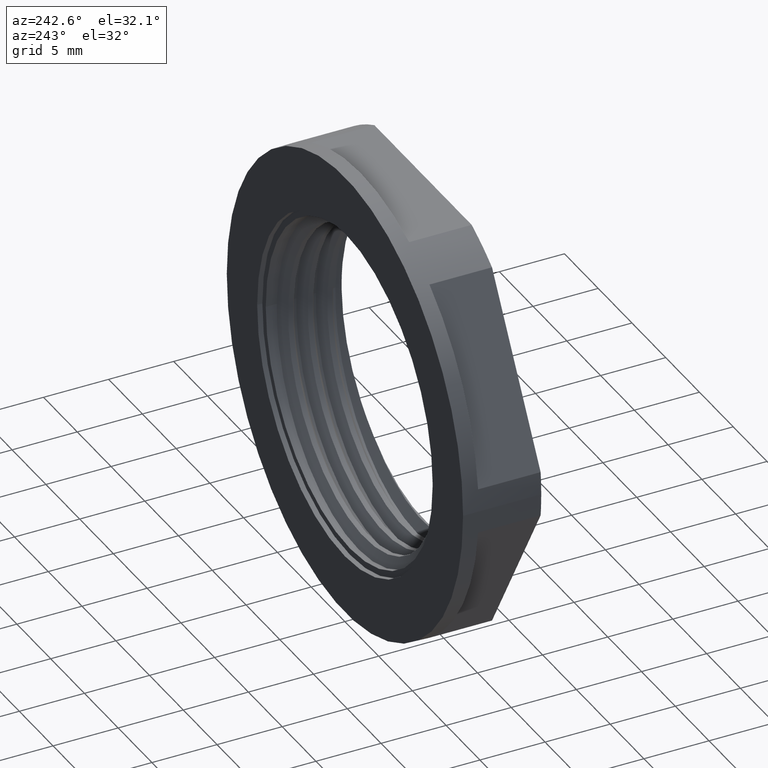
[diagram: clean part render]
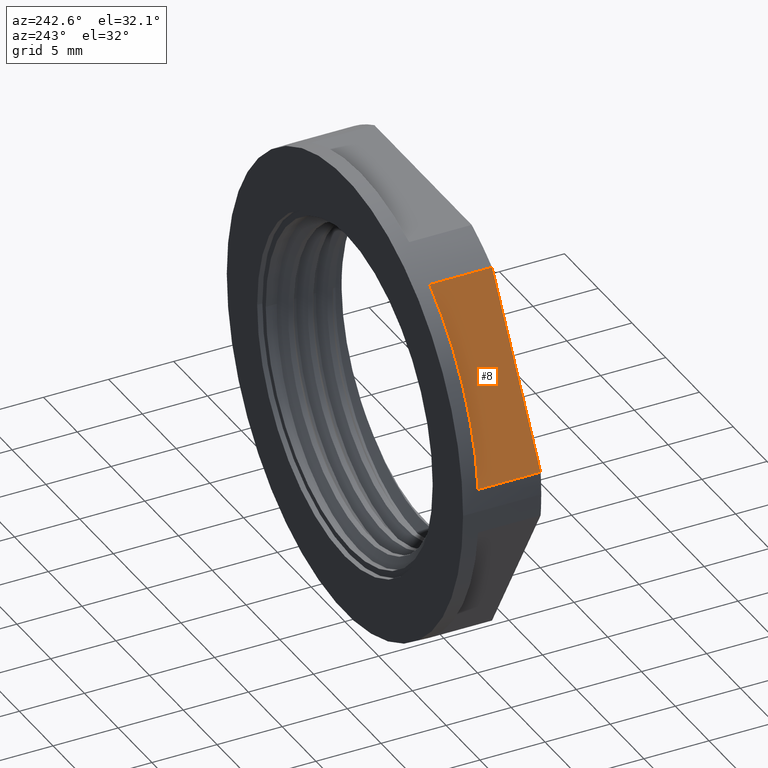
[diagram: same view with one face highlighted and labeled with its STEP entity id]
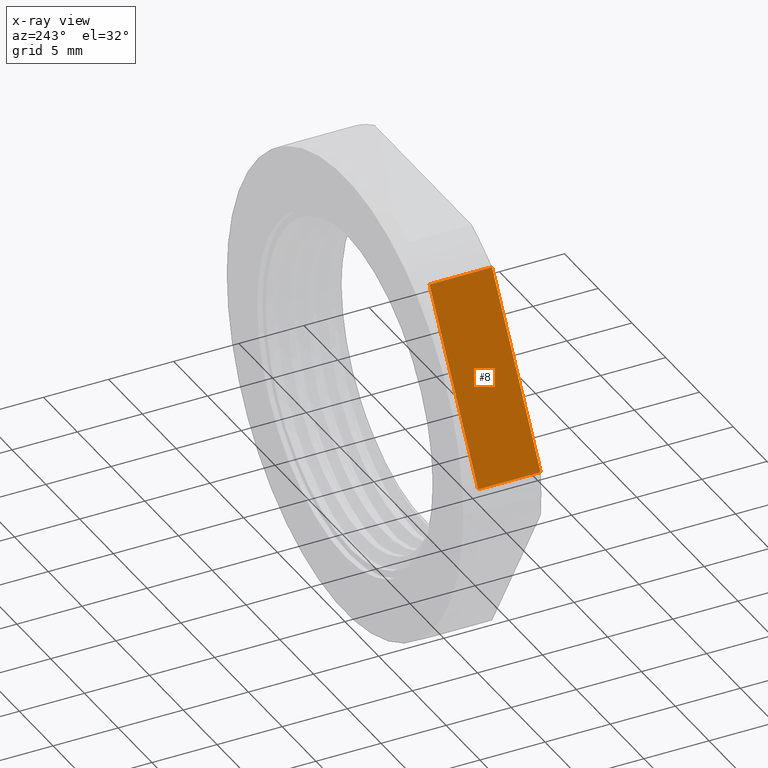
[diagram: x-ray of the same camera — body ghosted, the highlighted face saturated]
A machine part, auxiliary view. The second image highlights one B-rep face of the part: STEP entity #8.
The next image is the same camera in x-ray: the body ghosted, the highlighted face saturated — about 0% of this face is hidden behind the body in this view.
In plain terms, the highlighted planar face has unit normal (-0.866, -0, 0.5).
Its self-contained STEP definition (entity closure, byte-faithful):
#8 = ADVANCED_FACE ( 'NONE', ( #1227 ), #1244, .T. ) ;
#57 = EDGE_CURVE ( 'NONE', #1012, #1080, #828, .T. ) ;
#60 = EDGE_CURVE ( 'NONE', #1012, #1004, #847, .T. ) ;
#94 = EDGE_CURVE ( 'NONE', #1004, #1003, #200, .T. ) ;
#100 = EDGE_CURVE ( 'NONE', #1080, #1003, #278, .T. ) ;
#200 = LINE ( 'NONE', #207, #1806 ) ;
#207 = CARTESIAN_POINT ( 'NONE',  ( -17.41336559761014900, 36.15620339512025100, 1.739166054167250000 ) ) ;
#216 = DIRECTION ( 'NONE',  ( 1.224646799147352000E-016, -1.000000000000000000, 0.0000000000000000000 ) ) ;
#261 = DIRECTION ( 'NONE',  ( -0.4999999999999998900, -2.409163893373264600E-016, -0.8660254037844387100 ) ) ;
#262 = CARTESIAN_POINT ( 'NONE',  ( -10.21284478311344100, -16.00000000000000000, 14.21083394583276100 ) ) ;
#278 = LINE ( 'NONE', #262, #1782 ) ;
#465 = CARTESIAN_POINT ( 'NONE',  ( -17.41336559761014900, -16.00000000000000000, 1.739166054167250000 ) ) ;
#468 = CARTESIAN_POINT ( 'NONE',  ( -10.21284478311344100, -11.19999999999999900, 14.21083394583276100 ) ) ;
#485 = CARTESIAN_POINT ( 'NONE',  ( -17.41336559761014900, -11.19999999999999900, 1.739166054167250000 ) ) ;
#497 = CARTESIAN_POINT ( 'NONE',  ( -10.21284478311344100, -16.00000000000000000, 14.21083394583276100 ) ) ;
#828 = LINE ( 'NONE', #832, #1760 ) ;
#832 = CARTESIAN_POINT ( 'NONE',  ( -10.21284478311344100, 36.15620339512025100, 14.21083394583276100 ) ) ;
#847 = LINE ( 'NONE', #865, #1754 ) ;
#848 = DIRECTION ( 'NONE',  ( -0.4999999999999998900, -6.123233995736768500E-017, -0.8660254037844387100 ) ) ;
#865 = CARTESIAN_POINT ( 'NONE',  ( -10.21284478311344100, -11.19999999999999900, 14.21083394583276100 ) ) ;
#867 = DIRECTION ( 'NONE',  ( 1.224646799147352000E-016, -1.000000000000000000, 0.0000000000000000000 ) ) ;
#1003 = VERTEX_POINT ( 'NONE', #465 ) ;
#1004 = VERTEX_POINT ( 'NONE', #485 ) ;
#1012 = VERTEX_POINT ( 'NONE', #468 ) ;
#1080 = VERTEX_POINT ( 'NONE', #497 ) ;
#1146 = ORIENTED_EDGE ( 'NONE', *, *, #60, .T. ) ;
#1172 = ORIENTED_EDGE ( 'NONE', *, *, #94, .T. ) ;
#1179 = ORIENTED_EDGE ( 'NONE', *, *, #100, .F. ) ;
#1207 = ORIENTED_EDGE ( 'NONE', *, *, #57, .F. ) ;
#1227 = FACE_OUTER_BOUND ( 'NONE', #1258, .T. ) ;
#1234 = CARTESIAN_POINT ( 'NONE',  ( -10.21284478311344100, 36.15620339512025100, 14.21083394583276100 ) ) ;
#1235 = DIRECTION ( 'NONE',  ( -0.8660254037844387100, -1.060575238724905700E-016, 0.4999999999999998900 ) ) ;
#1240 = DIRECTION ( 'NONE',  ( 0.4999999999999998900, 0.0000000000000000000, 0.8660254037844387100 ) ) ;
#1244 = PLANE ( 'NONE',  #1714 ) ;
#1258 = EDGE_LOOP ( 'NONE', ( #1146, #1172, #1179, #1207 ) ) ;
#1714 = AXIS2_PLACEMENT_3D ( 'NONE', #1234, #1235, #1240 ) ;
#1754 = VECTOR ( 'NONE', #848, 1000.000000000000000 ) ;
#1760 = VECTOR ( 'NONE', #867, 1000.000000000000000 ) ;
#1782 = VECTOR ( 'NONE', #261, 1000.000000000000000 ) ;
#1806 = VECTOR ( 'NONE', #216, 1000.000000000000000 ) ;